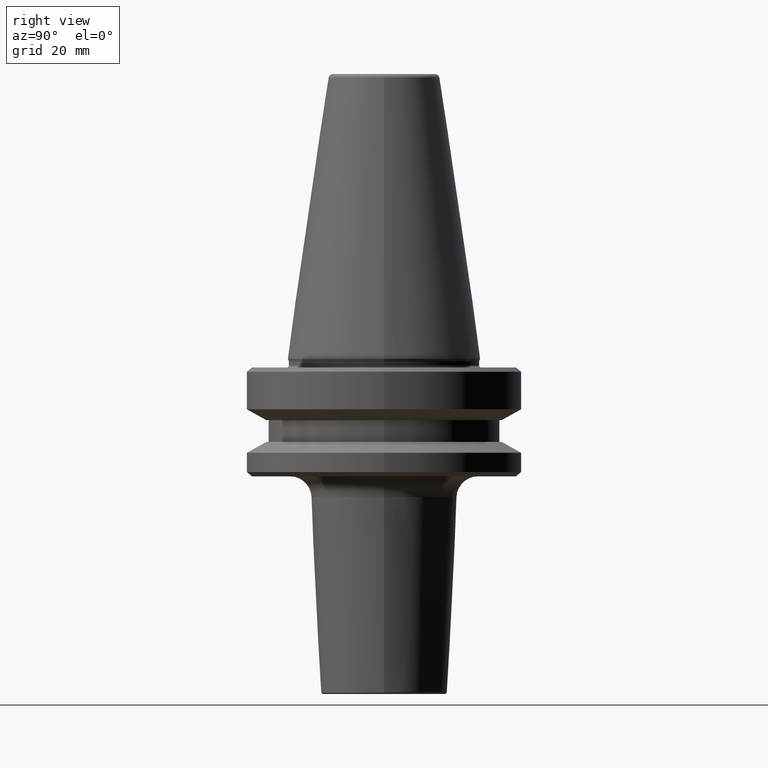
[diagram: clean part render]
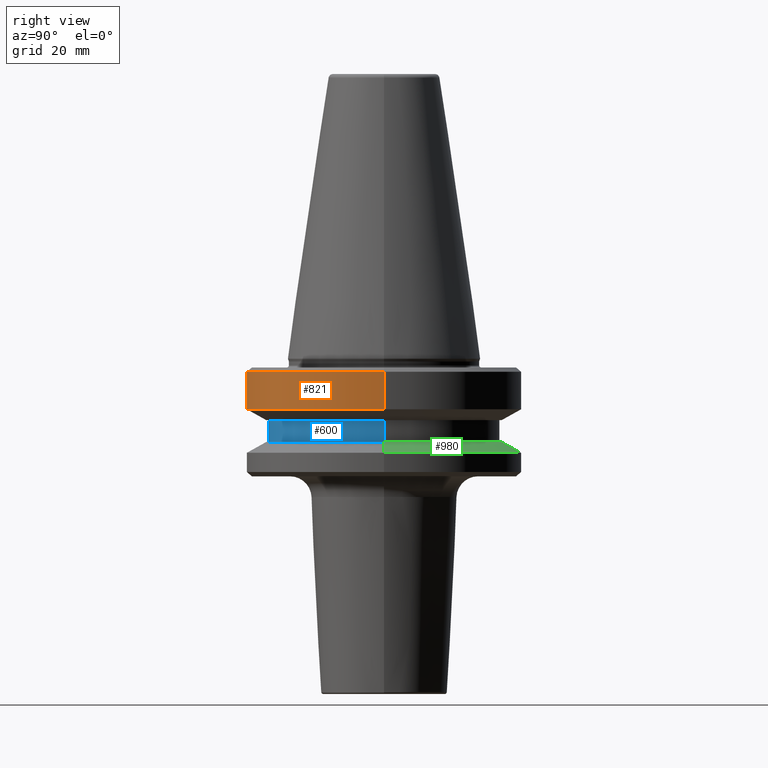
[diagram: same view with three faces highlighted in distinct colors, each labeled with its STEP entity id]
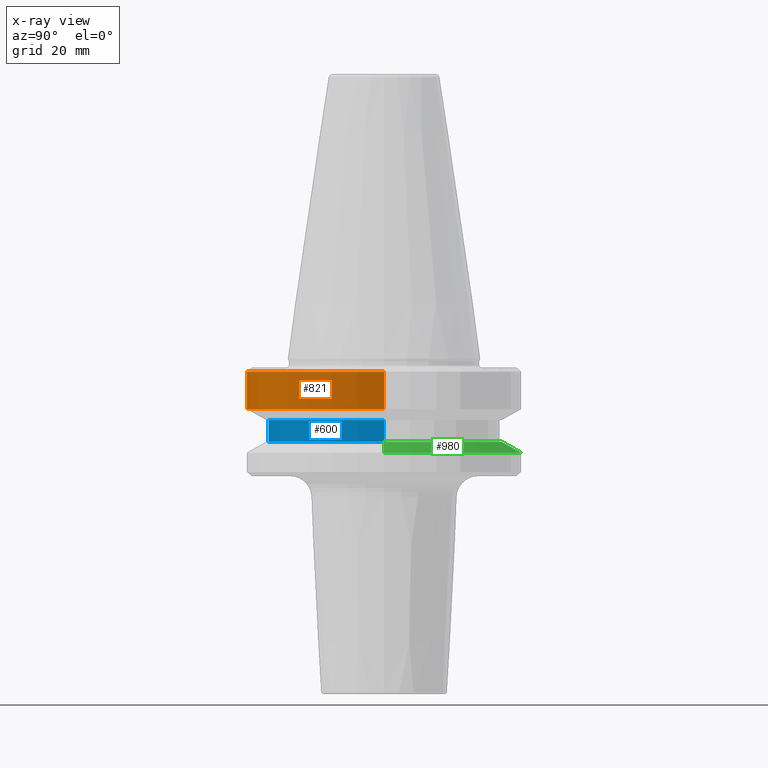
[diagram: x-ray of the same camera — body ghosted, the three highlighted faces saturated]
A machine part, right view with three faces highlighted in distinct colors.
The next image is the same camera in x-ray (body ghosted, the three faces saturated) — at least one of them is partly hidden behind the body in this view.
Their STEP definitions:

[orange] entity #821 — the highlighted cylindrical surface (partial cylindrical patch) has radius 31.5 mm, axis along (-0, -0, 1).
#10 = CARTESIAN_POINT ( 'NONE',  ( 31.50000000000008500, 0.0000000000000000000, -76.99985799368391800 ) ) ;
#19 = DIRECTION ( 'NONE',  ( -0.0000000000000000000, -0.0000000000000000000, 1.000000000000000000 ) ) ;
#59 = DIRECTION ( 'NONE',  ( 1.000000000000000000, 0.0000000000000000000, 0.0000000000000000000 ) ) ;
#68 = EDGE_CURVE ( 'NONE', #823, #814, #742, .T. ) ;
#120 = CARTESIAN_POINT ( 'NONE',  ( 0.0000000000000000000, 0.0000000000000000000, 6.357346922996331500 ) ) ;
#129 = CYLINDRICAL_SURFACE ( 'NONE', #894, 31.50000000000008500 ) ;
#137 = ORIENTED_EDGE ( 'NONE', *, *, #68, .F. ) ;
#216 = VERTEX_POINT ( 'NONE', #10 ) ;
#282 = DIRECTION ( 'NONE',  ( -0.0000000000000000000, -0.0000000000000000000, 1.000000000000000000 ) ) ;
#346 = CARTESIAN_POINT ( 'NONE',  ( 0.0000000000000000000, 0.0000000000000000000, -68.40000000000046000 ) ) ;
#352 = ORIENTED_EDGE ( 'NONE', *, *, #617, .F. ) ;
#375 = VECTOR ( 'NONE', #282, 1000.000000000000000 ) ;
#385 = DIRECTION ( 'NONE',  ( -0.0000000000000000000, -0.0000000000000000000, 1.000000000000000000 ) ) ;
#391 = CARTESIAN_POINT ( 'NONE',  ( -31.50000000000008500, 3.857637417314172900E-015, -76.99985799368391800 ) ) ;
#426 = CARTESIAN_POINT ( 'NONE',  ( -31.50000000000008500, 3.857637417314172900E-015, 6.357346922996331500 ) ) ;
#462 = DIRECTION ( 'NONE',  ( 1.000000000000000000, 0.0000000000000000000, 0.0000000000000000000 ) ) ;
#497 = CIRCLE ( 'NONE', #740, 31.50000000000008500 ) ;
#501 = DIRECTION ( 'NONE',  ( -0.0000000000000000000, -0.0000000000000000000, 1.000000000000000000 ) ) ;
#512 = ORIENTED_EDGE ( 'NONE', *, *, #807, .T. ) ;
#545 = LINE ( 'NONE', #572, #911 ) ;
#546 = ORIENTED_EDGE ( 'NONE', *, *, #644, .T. ) ;
#572 = CARTESIAN_POINT ( 'NONE',  ( 31.50000000000008500, 0.0000000000000000000, 6.357346922996331500 ) ) ;
#596 = CIRCLE ( 'NONE', #667, 31.50000000000008500 ) ;
#617 = EDGE_CURVE ( 'NONE', #814, #926, #497, .T. ) ;
#644 = EDGE_CURVE ( 'NONE', #216, #926, #545, .T. ) ;
#667 = AXIS2_PLACEMENT_3D ( 'NONE', #867, #385, #462 ) ;
#740 = AXIS2_PLACEMENT_3D ( 'NONE', #346, #19, #915 ) ;
#742 = LINE ( 'NONE', #426, #375 ) ;
#762 = FACE_OUTER_BOUND ( 'NONE', #887, .T. ) ;
#776 = CARTESIAN_POINT ( 'NONE',  ( -31.50000000000008500, 3.857637417314172900E-015, -68.40000000000046000 ) ) ;
#807 = EDGE_CURVE ( 'NONE', #823, #216, #596, .T. ) ;
#814 = VERTEX_POINT ( 'NONE', #776 ) ;
#821 = ADVANCED_FACE ( 'NONE', ( #762 ), #129, .T. ) ;
#823 = VERTEX_POINT ( 'NONE', #391 ) ;
#863 = CARTESIAN_POINT ( 'NONE',  ( 31.50000000000008500, 0.0000000000000000000, -68.40000000000046000 ) ) ;
#867 = CARTESIAN_POINT ( 'NONE',  ( 0.0000000000000000000, 0.0000000000000000000, -76.99985799368391800 ) ) ;
#887 = EDGE_LOOP ( 'NONE', ( #137, #512, #546, #352 ) ) ;
#894 = AXIS2_PLACEMENT_3D ( 'NONE', #120, #1026, #59 ) ;
#911 = VECTOR ( 'NONE', #501, 1000.000000000000000 ) ;
#915 = DIRECTION ( 'NONE',  ( 1.000000000000000000, 0.0000000000000000000, 0.0000000000000000000 ) ) ;
#926 = VERTEX_POINT ( 'NONE', #863 ) ;
#1026 = DIRECTION ( 'NONE',  ( -0.0000000000000000000, -0.0000000000000000000, 1.000000000000000000 ) ) ;

[blue] entity #600 — the highlighted cylindrical surface (partial cylindrical patch) has radius 26.5 mm, axis along (-0, -0, 1).
#48 = VERTEX_POINT ( 'NONE', #337 ) ;
#49 = ORIENTED_EDGE ( 'NONE', *, *, #811, .T. ) ;
#82 = DIRECTION ( 'NONE',  ( -0.0000000000000000000, -0.0000000000000000000, 1.000000000000000000 ) ) ;
#84 = CARTESIAN_POINT ( 'NONE',  ( 26.50000000000019200, 0.0000000000000000000, 6.357346922996331500 ) ) ;
#103 = EDGE_CURVE ( 'NONE', #154, #276, #406, .T. ) ;
#140 = DIRECTION ( 'NONE',  ( -0.0000000000000000000, -0.0000000000000000000, 1.000000000000000000 ) ) ;
#154 = VERTEX_POINT ( 'NONE', #832 ) ;
#162 = EDGE_CURVE ( 'NONE', #200, #154, #535, .T. ) ;
#200 = VERTEX_POINT ( 'NONE', #315 ) ;
#229 = DIRECTION ( 'NONE',  ( 1.000000000000000000, 0.0000000000000000000, 0.0000000000000000000 ) ) ;
#276 = VERTEX_POINT ( 'NONE', #842 ) ;
#284 = DIRECTION ( 'NONE',  ( -0.0000000000000000000, -0.0000000000000000000, 1.000000000000000000 ) ) ;
#313 = ORIENTED_EDGE ( 'NONE', *, *, #162, .F. ) ;
#315 = CARTESIAN_POINT ( 'NONE',  ( -26.50000000000019200, 3.245314017740509400E-015, -84.50000000000068200 ) ) ;
#331 = CARTESIAN_POINT ( 'NONE',  ( -26.50000000000019200, 3.245314017740509400E-015, 6.357346922996331500 ) ) ;
#336 = VECTOR ( 'NONE', #284, 1000.000000000000000 ) ;
#337 = CARTESIAN_POINT ( 'NONE',  ( 26.50000000000019200, 0.0000000000000000000, -84.50000000000068200 ) ) ;
#348 = ORIENTED_EDGE ( 'NONE', *, *, #103, .F. ) ;
#367 = LINE ( 'NONE', #84, #758 ) ;
#406 = CIRCLE ( 'NONE', #541, 26.50000000000019200 ) ;
#535 = LINE ( 'NONE', #331, #336 ) ;
#541 = AXIS2_PLACEMENT_3D ( 'NONE', #641, #82, #707 ) ;
#562 = CYLINDRICAL_SURFACE ( 'NONE', #852, 26.50000000000019200 ) ;
#574 = CIRCLE ( 'NONE', #717, 26.50000000000019200 ) ;
#600 = ADVANCED_FACE ( 'NONE', ( #729 ), #562, .T. ) ;
#620 = CARTESIAN_POINT ( 'NONE',  ( 0.0000000000000000000, 0.0000000000000000000, -84.50000000000068200 ) ) ;
#641 = CARTESIAN_POINT ( 'NONE',  ( 0.0000000000000000000, 0.0000000000000000000, -79.50000000000012800 ) ) ;
#703 = DIRECTION ( 'NONE',  ( -0.0000000000000000000, -0.0000000000000000000, 1.000000000000000000 ) ) ;
#707 = DIRECTION ( 'NONE',  ( 1.000000000000000000, 0.0000000000000000000, 0.0000000000000000000 ) ) ;
#717 = AXIS2_PLACEMENT_3D ( 'NONE', #620, #140, #229 ) ;
#729 = FACE_OUTER_BOUND ( 'NONE', #1043, .T. ) ;
#748 = DIRECTION ( 'NONE',  ( 1.000000000000000000, 0.0000000000000000000, 0.0000000000000000000 ) ) ;
#758 = VECTOR ( 'NONE', #703, 1000.000000000000000 ) ;
#811 = EDGE_CURVE ( 'NONE', #200, #48, #574, .T. ) ;
#832 = CARTESIAN_POINT ( 'NONE',  ( -26.50000000000019200, 3.245314017740509400E-015, -79.50000000000012800 ) ) ;
#842 = CARTESIAN_POINT ( 'NONE',  ( 26.50000000000019200, 0.0000000000000000000, -79.50000000000012800 ) ) ;
#852 = AXIS2_PLACEMENT_3D ( 'NONE', #1017, #907, #748 ) ;
#884 = ORIENTED_EDGE ( 'NONE', *, *, #1037, .T. ) ;
#907 = DIRECTION ( 'NONE',  ( -0.0000000000000000000, -0.0000000000000000000, 1.000000000000000000 ) ) ;
#1017 = CARTESIAN_POINT ( 'NONE',  ( 0.0000000000000000000, 0.0000000000000000000, 6.357346922996331500 ) ) ;
#1037 = EDGE_CURVE ( 'NONE', #48, #276, #367, .T. ) ;
#1043 = EDGE_LOOP ( 'NONE', ( #313, #49, #884, #348 ) ) ;

[green] entity #980 — the highlighted conical surface has half-angle 60 deg.
#24 = VERTEX_POINT ( 'NONE', #168 ) ;
#27 = ORIENTED_EDGE ( 'NONE', *, *, #296, .F. ) ;
#47 = ORIENTED_EDGE ( 'NONE', *, *, #485, .T. ) ;
#58 = EDGE_LOOP ( 'NONE', ( #736, #47, #919, #27 ) ) ;
#63 = CARTESIAN_POINT ( 'NONE',  ( 27.16962701892256100, 3.592478546794633900E-015, -84.50000000000068200 ) ) ;
#100 = DIRECTION ( 'NONE',  ( 0.8660254037844332700, 1.060575238724900300E-016, -0.5000000000000093300 ) ) ;
#105 = CARTESIAN_POINT ( 'NONE',  ( -31.50000000000008500, 0.0000000000000000000, -87.00014200631733300 ) ) ;
#134 = CARTESIAN_POINT ( 'NONE',  ( -27.16962701892256100, 0.0000000000000000000, -84.50000000000068200 ) ) ;
#168 = CARTESIAN_POINT ( 'NONE',  ( 31.50000000000008500, 0.0000000000000000000, -87.00014200631733300 ) ) ;
#199 = LINE ( 'NONE', #567, #390 ) ;
#226 = CARTESIAN_POINT ( 'NONE',  ( 0.0000000000000000000, 0.0000000000000000000, -87.00014200631733300 ) ) ;
#237 = FACE_OUTER_BOUND ( 'NONE', #58, .T. ) ;
#289 = AXIS2_PLACEMENT_3D ( 'NONE', #226, #532, #779 ) ;
#294 = CARTESIAN_POINT ( 'NONE',  ( 0.0000000000000000000, 0.0000000000000000000, -87.00014200631733300 ) ) ;
#296 = EDGE_CURVE ( 'NONE', #785, #942, #307, .T. ) ;
#306 = VERTEX_POINT ( 'NONE', #63 ) ;
#307 = LINE ( 'NONE', #105, #510 ) ;
#308 = DIRECTION ( 'NONE',  ( -1.000000000000000000, 0.0000000000000000000, 0.0000000000000000000 ) ) ;
#387 = CARTESIAN_POINT ( 'NONE',  ( -31.50000000000008500, 3.857637417314172900E-015, -87.00014200631733300 ) ) ;
#390 = VECTOR ( 'NONE', #100, 1000.000000000000000 ) ;
#429 = AXIS2_PLACEMENT_3D ( 'NONE', #871, #547, #786 ) ;
#485 = EDGE_CURVE ( 'NONE', #306, #24, #199, .T. ) ;
#490 = AXIS2_PLACEMENT_3D ( 'NONE', #294, #963, #308 ) ;
#505 = EDGE_CURVE ( 'NONE', #306, #785, #784, .T. ) ;
#510 = VECTOR ( 'NONE', #989, 1000.000000000000000 ) ;
#532 = DIRECTION ( 'NONE',  ( -0.0000000000000000000, -0.0000000000000000000, 1.000000000000000000 ) ) ;
#547 = DIRECTION ( 'NONE',  ( -0.0000000000000000000, -0.0000000000000000000, 1.000000000000000000 ) ) ;
#567 = CARTESIAN_POINT ( 'NONE',  ( 31.50000000000008500, 3.857637417314172900E-015, -87.00014200631733300 ) ) ;
#736 = ORIENTED_EDGE ( 'NONE', *, *, #505, .F. ) ;
#779 = DIRECTION ( 'NONE',  ( 1.000000000000000000, 0.0000000000000000000, 0.0000000000000000000 ) ) ;
#784 = CIRCLE ( 'NONE', #429, 27.16962701892256100 ) ;
#785 = VERTEX_POINT ( 'NONE', #134 ) ;
#786 = DIRECTION ( 'NONE',  ( 1.000000000000000000, 0.0000000000000000000, 0.0000000000000000000 ) ) ;
#819 = CONICAL_SURFACE ( 'NONE', #490, 31.50000000000008500, 1.047197551196587000 ) ;
#871 = CARTESIAN_POINT ( 'NONE',  ( 0.0000000000000000000, 0.0000000000000000000, -84.50000000000068200 ) ) ;
#903 = CIRCLE ( 'NONE', #289, 31.50000000000008500 ) ;
#919 = ORIENTED_EDGE ( 'NONE', *, *, #927, .T. ) ;
#927 = EDGE_CURVE ( 'NONE', #24, #942, #903, .T. ) ;
#942 = VERTEX_POINT ( 'NONE', #387 ) ;
#963 = DIRECTION ( 'NONE',  ( 0.0000000000000000000, 0.0000000000000000000, -1.000000000000000000 ) ) ;
#980 = ADVANCED_FACE ( 'NONE', ( #237 ), #819, .T. ) ;
#989 = DIRECTION ( 'NONE',  ( -0.8660254037844332700, 0.0000000000000000000, -0.5000000000000093300 ) ) ;